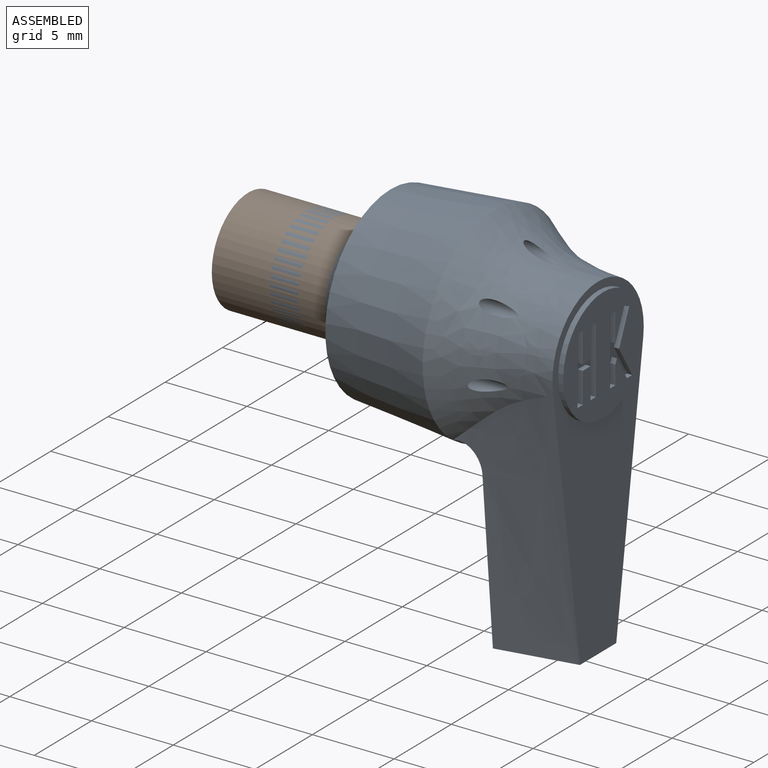
[diagram: assembled view]
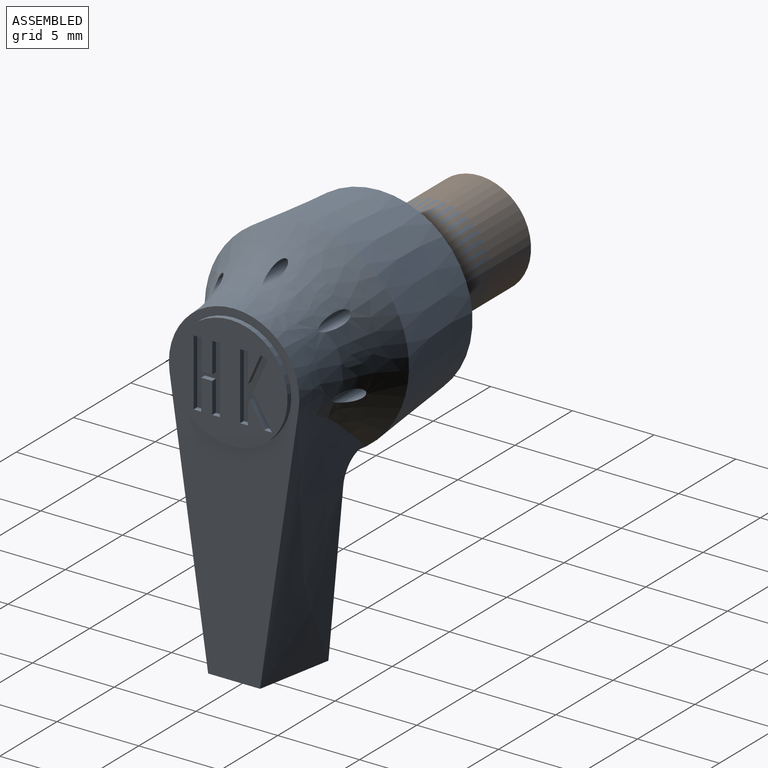
[diagram: assembled view, second angle]
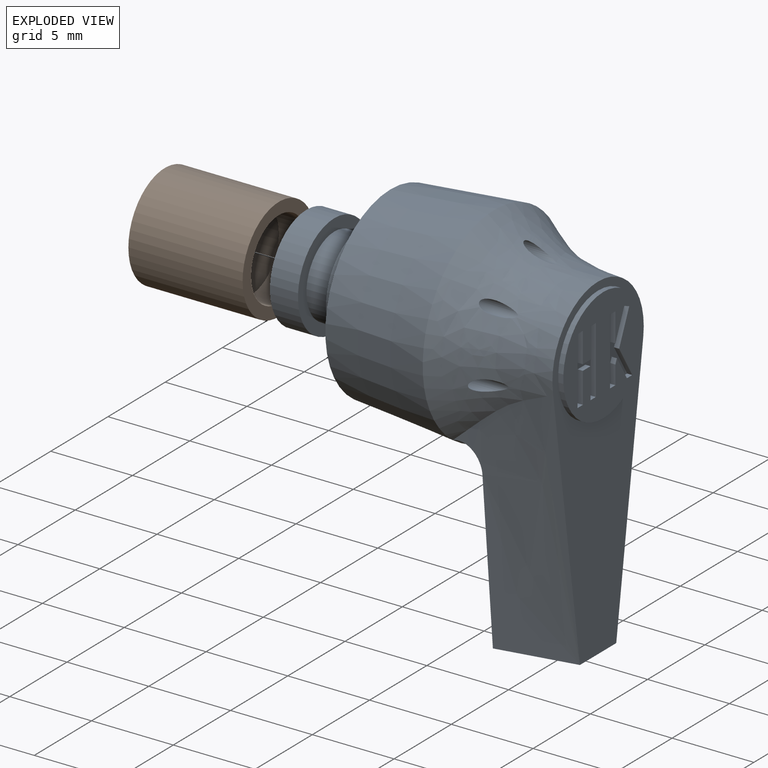
[diagram: exploded view]
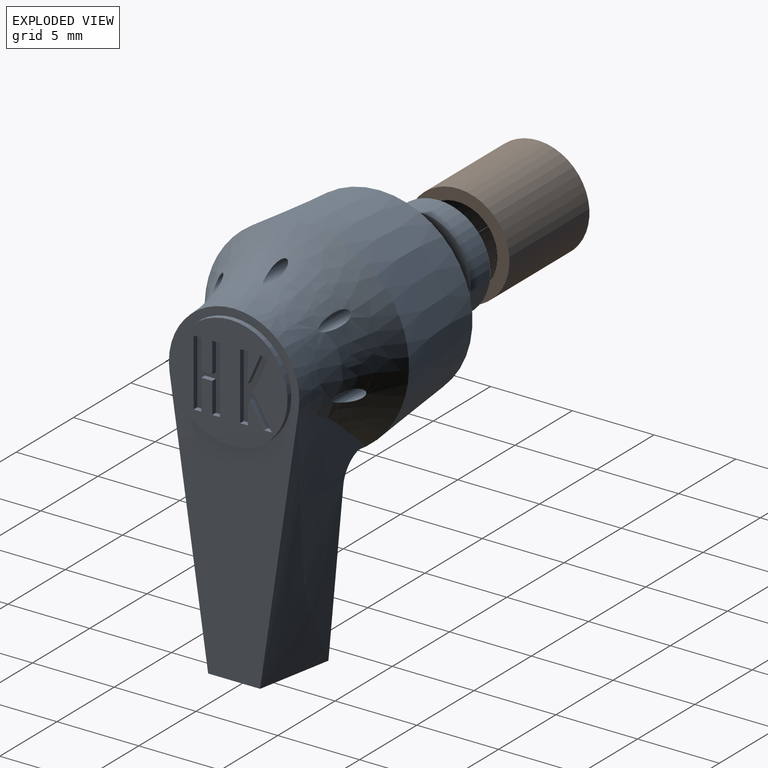
[diagram: exploded view, second angle]
ASSEMBLY  parts=2 mates=2
PART A: 59 faces, bbox 18.2x12.5x22.9 mm
  f0: plane 6.99x6.99mm, normal (1,0,0), area 30.4mm2, adj f26,f27,f28,f29,f30,f31,f32,f33
  f1: plane 6.35x6.35mm, normal (-1,0,0), area 31.7mm2, adj f8
  f2: cone r=5.68mm half-angle=5.1deg, axis (1,0,0), area 239mm2, adj f3,f10,f25
  f3: plane 11.37x11.37mm, normal (-1,0,0), area 69.8mm2, adj f2,f4
  f4: cylinder r=3.17mm len=6.35mm, axis (1,0,0), area 34.2mm2, adj f3,f5
  f5: plane 6.35x6.35mm, normal (-1,0,0), area 13mm2, adj f4,f6
  f6: cylinder r=2.44mm len=4.88mm, axis (1,0,0), area 26.3mm2, adj f5,f7
  f7: plane 6.35x6.35mm, normal (1,0,0), area 13mm2, adj f6,f8
  f8: cylinder r=3.17mm len=6.35mm, axis (1,0,0), area 34.2mm2, adj f1,f7
  f9: plane 20.59x7.98mm, normal (1,0,0), area 79.9mm2, adj f10,f22,f23,f24,f26
  f10: bspline ~12.5x12.33mm, area 137.1mm2, adj f2,f9,f11,f13,f15,f17,f19,f22
  f11: cylinder r=0.38mm len=3.78mm, axis (1,0,0), area 6.5mm2, adj f10,f12
  f12: plane 0.77x0.77mm, normal (1,0,0), area 0.5mm2, adj f11
  f13: cylinder r=0.38mm len=3.78mm, axis (1,0,0), area 6.5mm2, adj f10,f14
  f14: plane 0.77x0.77mm, normal (1,0,0), area 0.5mm2, adj f13
  f15: cylinder r=0.38mm len=3.78mm, axis (1,0,0), area 6.5mm2, adj f10,f16
  f16: plane 0.77x0.77mm, normal (1,0,0), area 0.5mm2, adj f15
  f17: cylinder r=0.38mm len=3.78mm, axis (1,0,0), area 6.5mm2, adj f10,f18
  f18: plane 0.77x0.77mm, normal (1,0,0), area 0.5mm2, adj f17
  f19: cylinder r=0.38mm len=3.78mm, axis (1,0,0), area 6.5mm2, adj f10,f20
  f20: plane 0.77x0.77mm, normal (1,0,0), area 0.5mm2, adj f19
  f21: plane 9.97x6.8mm, normal (-1,0,0), area 54.7mm2, adj f22,f23,f24,f25
  f22: bspline ~16.04x6.35mm, area 71.2mm2, adj f9,f10,f21,f23,f25
  f23: plane 4.95x4.7mm, normal (0,0,-1), area 19.1mm2, adj f9,f21,f22,f24
  f24: bspline ~16.02x6.35mm, area 71.2mm2, adj f9,f10,f21,f23,f25
  f25: bspline ~8.64x2.41mm, area 17mm2, adj f2,f21,f22,f24
  f26: cylinder r=3.49mm len=6.99mm, axis (-1,0,0), area 7mm2, adj f0,f9
  f27: plane 0.47x0.32mm, normal (0,0,-1), area 0.1mm2, adj f0,f28,f38,f39
  f28: plane 4.09x0.32mm, normal (0,1,0), area 1.3mm2, adj f0,f27,f29,f39
  f29: plane 0.47x0.32mm, normal (0,0,1), area 0.1mm2, adj f0,f28,f30,f39
  f30: plane 1.14x0.32mm, normal (0,-1,0), area 0.4mm2, adj f0,f29,f31,f39
  f31: plane 0.32x0.3mm, normal (0,-0.92,0.4), area 0.1mm2, adj f0,f30,f32,f39
  f32: plane 1.44x0.87mm, normal (0,0.86,0.52), area 0.5mm2, adj f0,f31,f33,f39
  f33: plane 0.47x0.32mm, normal (0,0,1), area 0.1mm2, adj f0,f32,f34,f39
  f34: plane 1.89x1.14mm, normal (0,-0.86,-0.52), area 0.7mm2, adj f0,f33,f35,f39
  f35: plane 2.02x0.88mm, normal (0,-0.92,0.4), area 0.7mm2, adj f0,f34,f36,f39
  f36: plane 0.43x0.32mm, normal (0,-0.4,-0.92), area 0.1mm2, adj f0,f35,f37,f39
  f37: plane 1.78x0.78mm, normal (0,0.92,-0.4), area 0.6mm2, adj f0,f36,f38,f39
  f38: plane 1.78x0.32mm, normal (0,-1,0), area 0.6mm2, adj f0,f27,f37,f39
  f39: plane 4.09x1.94mm, normal (1,0,0), area 3.8mm2, adj f27,f28,f29,f30,f31,f32,f33,f34
  f40: plane 1.85x0.32mm, normal (0,-1,0), area 0.6mm2, adj f0,f41,f51,f52
  f41: plane 0.47x0.32mm, normal (0,0,-1), area 0.1mm2, adj f0,f40,f42,f52
  f42: plane 4.09x0.32mm, normal (0,1,0), area 1.3mm2, adj f0,f41,f43,f52
  f43: plane 0.47x0.32mm, normal (0,0,1), area 0.1mm2, adj f0,f42,f44,f52
  f44: plane 1.88x0.32mm, normal (0,-1,0), area 0.6mm2, adj f0,f43,f45,f52
  f45: plane 0.67x0.32mm, normal (0,0,1), area 0.2mm2, adj f0,f44,f46,f52
  f46: plane 1.88x0.32mm, normal (0,1,0), area 0.6mm2, adj f0,f45,f47,f52
  f47: plane 0.47x0.32mm, normal (0,0,1), area 0.1mm2, adj f0,f46,f48,f52
  f48: plane 4.09x0.32mm, normal (0,-1,0), area 1.3mm2, adj f0,f47,f49,f52
  f49: plane 0.47x0.32mm, normal (0,0,-1), area 0.1mm2, adj f0,f48,f50,f52
  f50: plane 1.85x0.32mm, normal (0,1,0), area 0.6mm2, adj f0,f49,f51,f52
  f51: plane 0.67x0.32mm, normal (0,0,-1), area 0.2mm2, adj f0,f40,f50,f52
  f52: plane 4.09x1.6mm, normal (1,0,0), area 4.1mm2, adj f40,f41,f42,f43,f44,f45,f46,f47
  f53: plane 0.77x0.77mm, normal (-1,0,0), area 0.5mm2, adj f55
  f54: plane 0.77x0.77mm, normal (1,0,0), area 0.5mm2, adj f55
  f55: cylinder r=0.38mm len=1.65mm, axis (1,0,0), area 4mm2, adj f53,f54
  f56: plane 0.77x0.77mm, normal (-1,0,0), area 0.5mm2, adj f58
  f57: plane 0.77x0.77mm, normal (1,0,0), area 0.5mm2, adj f58
  f58: cylinder r=0.38mm len=1.65mm, axis (1,0,0), area 4mm2, adj f56,f57
PART B: 6 faces, bbox 6.4x7x6.4 mm
  f0: plane 6.29x6.29mm, normal (0,1,0), area 12.4mm2, adj f1,f4
  f1: cylinder r=2.44mm len=4.88mm, axis (0,1,0), area 26.3mm2, adj f0,f3
  f2: cylinder r=3.17mm len=6.99mm, axis (0,1,0), area 139.3mm2, adj f3,f5
  f3: plane 6.35x6.35mm, normal (0,-1,0), area 13mm2, adj f1,f2
  f4: cylinder r=3.14mm len=6.29mm, axis (0,-1,0), area 104.1mm2, adj f0,f5
  f5: plane 6.35x6.35mm, normal (0,1,0), area 0.6mm2, adj f2,f4
PLACE A t=(-10.97,10.14,4.3)mm fixed
PLACE B rot(axis=(-0.58,0.58,0.58),120deg) t=(-9.26,10.14,4.3)mm
MATE fastened B.f1 <-> A.f2  axis (-1,0,0) through (-9.26,10.14,4.3)mm
MATE cylindrical B.f1 <-> A.f2  axis (-1,0,0) through (-8.4,10.14,4.3)mm
